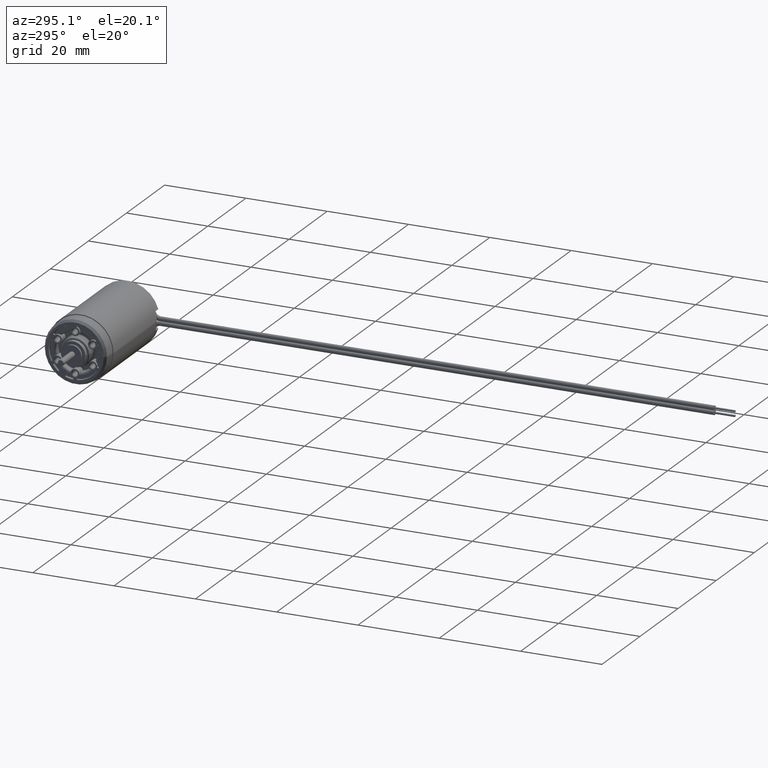
[diagram: clean part render]
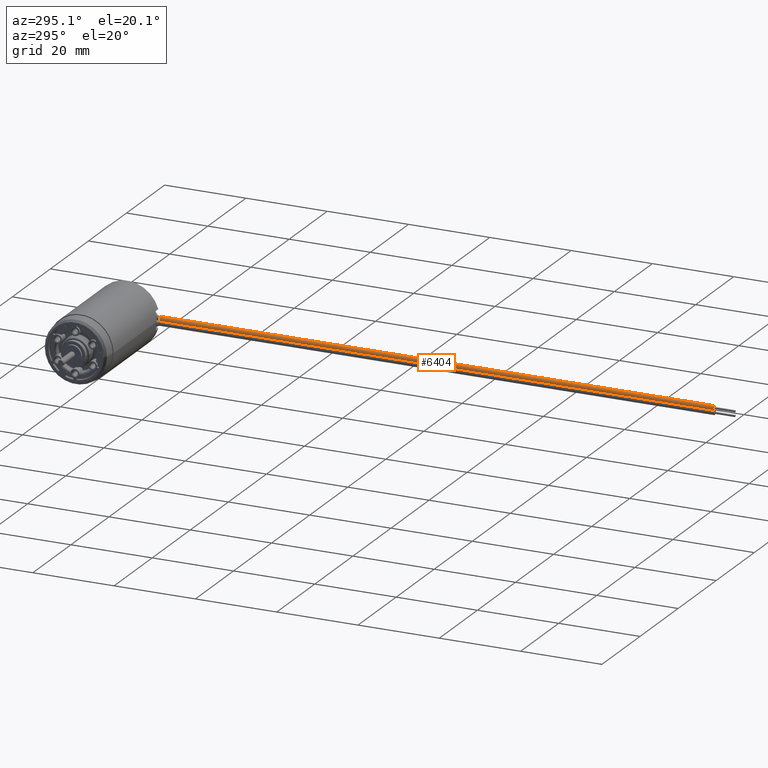
[diagram: same view with one face highlighted and labeled with its STEP entity id]
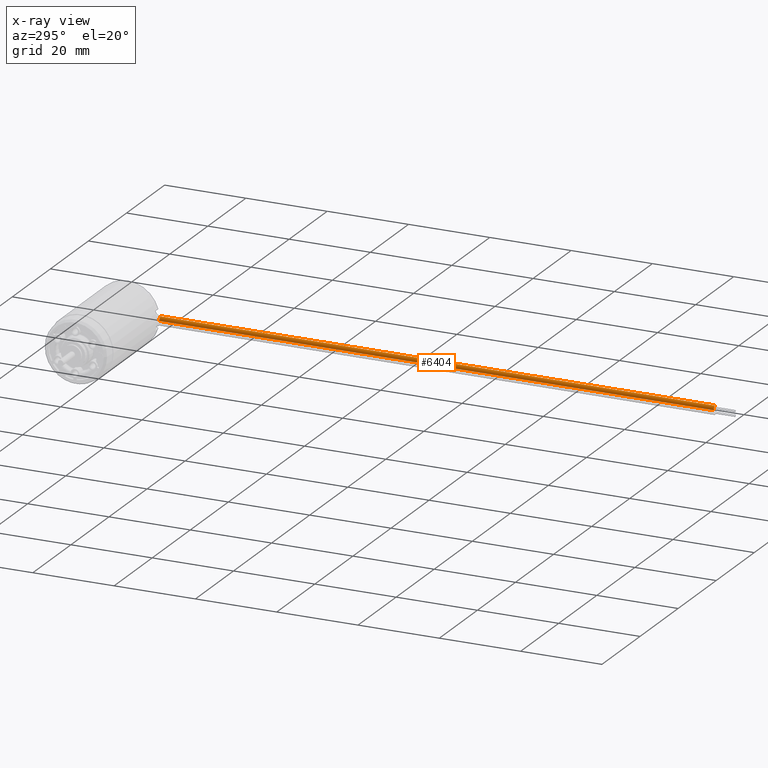
[diagram: x-ray of the same camera — body ghosted, the highlighted face saturated]
A machine part, auxiliary view. The second image highlights one B-rep face of the part: STEP entity #6404.
The next image is the same camera in x-ray: the body ghosted, the highlighted face saturated — about 0% of this face is hidden behind the body in this view.
In plain terms, the highlighted cylindrical surface (edge-blend (fillet) strip) has radius 0.55 mm, axis along (0, 1, 0).
Its self-contained STEP definition (entity closure, byte-faithful):
#2497=CARTESIAN_POINT('',(3.405E1,-8.65E0,5.6E-1));
#2498=DIRECTION('',(0.E0,1.E0,0.E0));
#2499=DIRECTION('',(1.291895883200E-14,0.E0,-1.E0));
#2500=AXIS2_PLACEMENT_3D('',#2497,#2498,#2499);
#2539=DIRECTION('',(0.E0,1.E0,0.E0));
#2540=VECTOR('',#2539,1.3635E2);
#2541=CARTESIAN_POINT('',(3.405E1,-1.45E2,1.E-2));
#2542=LINE('',#2541,#2540);
#2548=CARTESIAN_POINT('',(3.405E1,-1.45E2,5.6E-1));
#2549=DIRECTION('',(0.E0,1.E0,0.E0));
#2550=DIRECTION('',(0.E0,0.E0,-1.E0));
#2551=AXIS2_PLACEMENT_3D('',#2548,#2549,#2550);
#2563=DIRECTION('',(0.E0,1.E0,0.E0));
#2564=VECTOR('',#2563,1.3635E2);
#2565=CARTESIAN_POINT('',(3.405E1,-1.45E2,1.11E0));
#2566=LINE('',#2565,#2564);
#3097=CARTESIAN_POINT('',(3.405E1,-1.45E2,1.11E0));
#3098=CARTESIAN_POINT('',(3.405E1,-1.45E2,1.E-2));
#3099=VERTEX_POINT('',#3097);
#3100=VERTEX_POINT('',#3098);
#3101=CARTESIAN_POINT('',(3.405E1,-8.65E0,1.11E0));
#3102=CARTESIAN_POINT('',(3.405E1,-8.65E0,1.E-2));
#3103=VERTEX_POINT('',#3101);
#3104=VERTEX_POINT('',#3102);
#6390=CARTESIAN_POINT('',(3.405E1,-1.45E2,5.6E-1));
#6391=DIRECTION('',(0.E0,1.E0,0.E0));
#6392=DIRECTION('',(0.E0,0.E0,1.E0));
#6393=AXIS2_PLACEMENT_3D('',#6390,#6391,#6392);
#6394=CYLINDRICAL_SURFACE('',#6393,5.5E-1);
#6396=ORIENTED_EDGE('',*,*,#6395,.F.);
#6398=ORIENTED_EDGE('',*,*,#6397,.T.);
#6399=ORIENTED_EDGE('',*,*,#6349,.T.);
#6401=ORIENTED_EDGE('',*,*,#6400,.F.);
#6402=EDGE_LOOP('',(#6396,#6398,#6399,#6401));
#6403=FACE_OUTER_BOUND('',#6402,.F.);
#6404=ADVANCED_FACE('',(#6403),#6394,.T.);
#2501=CIRCLE('',#2500,5.5E-1);
#2552=CIRCLE('',#2551,5.5E-1);
#6349=EDGE_CURVE('',#3104,#3103,#2501,.T.);
#6395=EDGE_CURVE('',#3100,#3099,#2552,.T.);
#6397=EDGE_CURVE('',#3100,#3104,#2542,.T.);
#6400=EDGE_CURVE('',#3099,#3103,#2566,.T.);